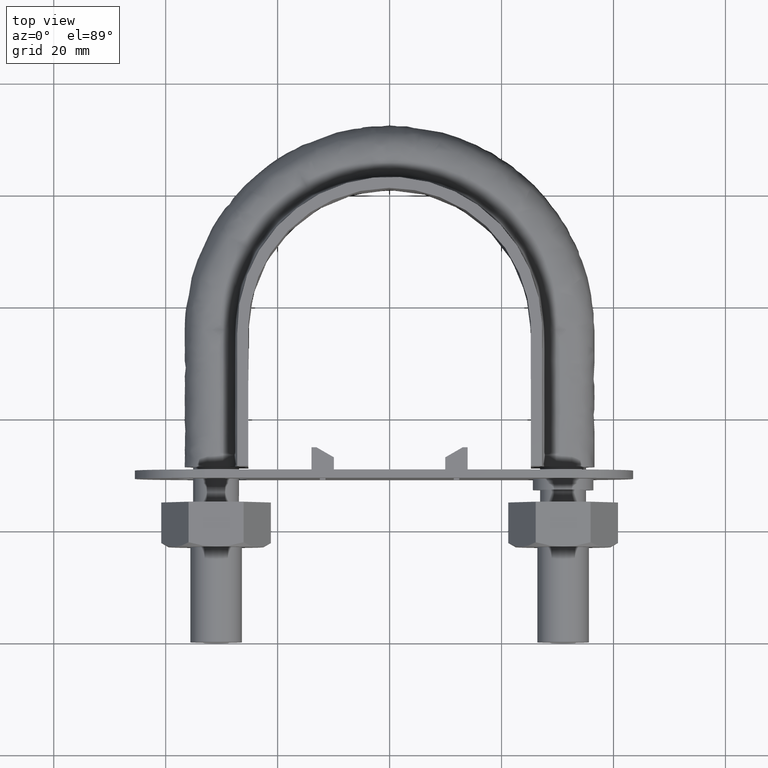
[diagram: clean part render]
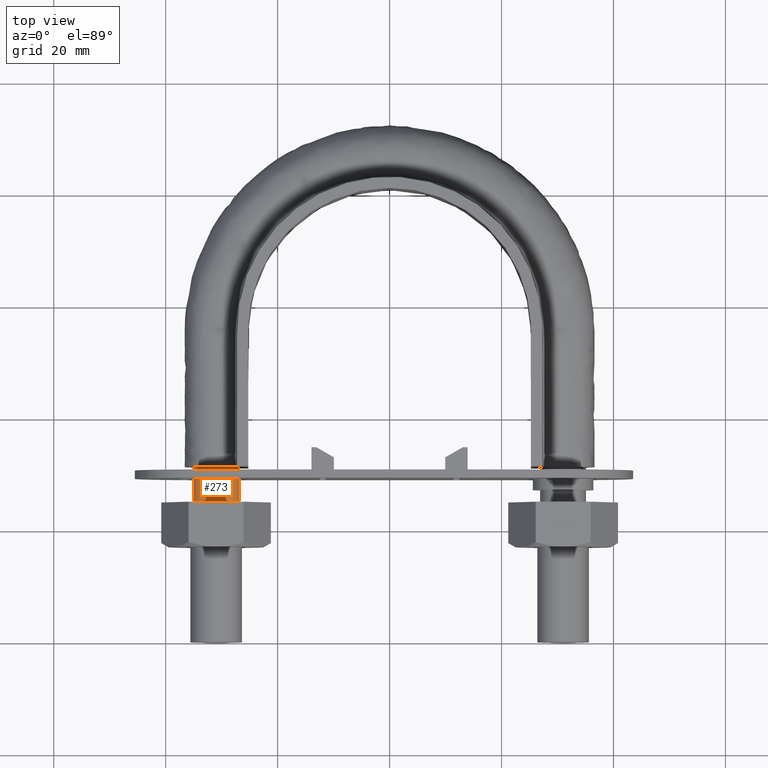
[diagram: same view with one face highlighted and labeled with its STEP entity id]
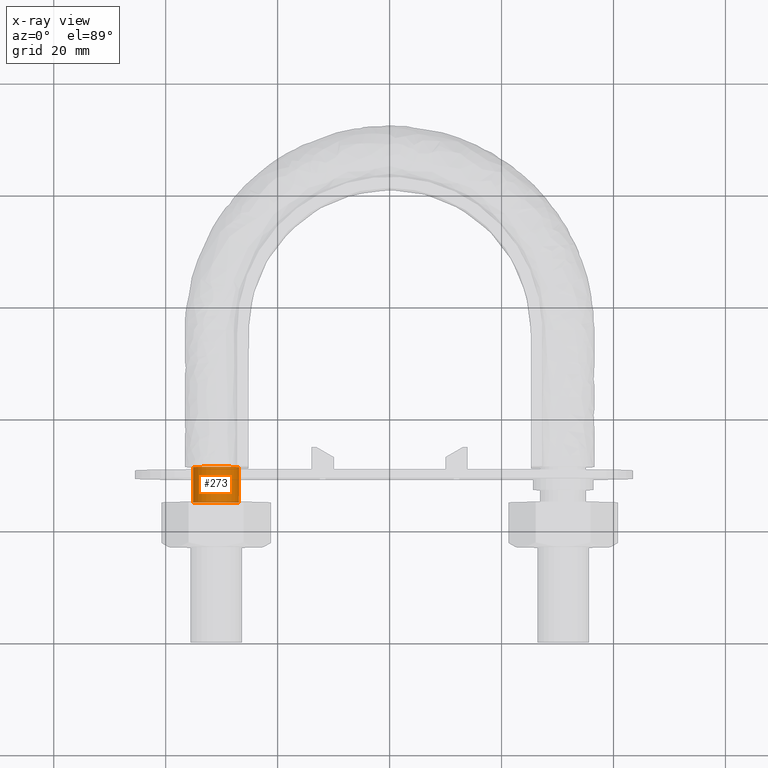
[diagram: x-ray of the same camera — body ghosted, the highlighted face saturated]
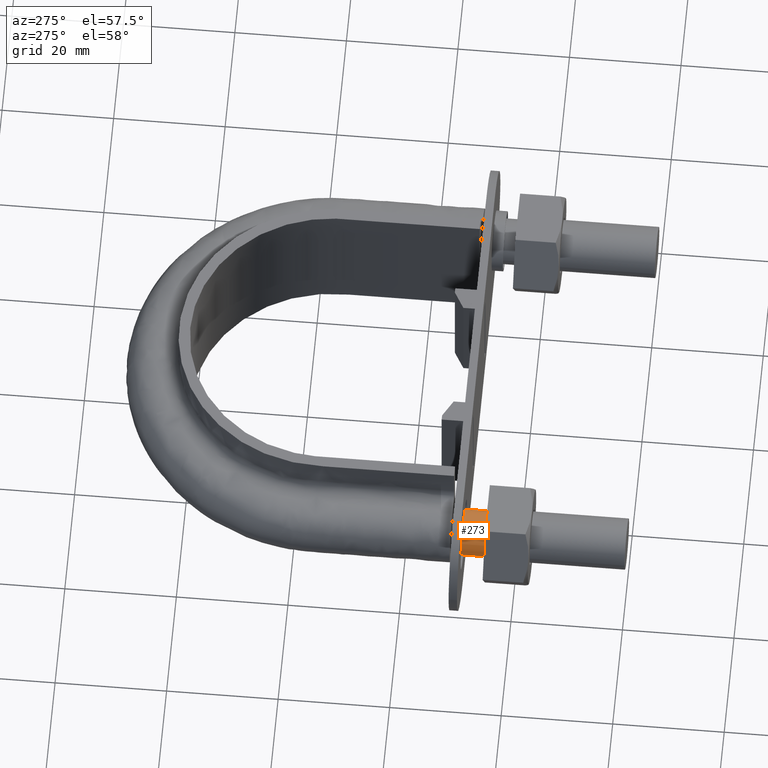
[diagram: same view with one face highlighted and labeled with its STEP entity id]
A machine part, top view. The second image highlights one B-rep face of the part: STEP entity #273.
The next image is the same camera in x-ray: the body ghosted, the highlighted face saturated — about 0% of this face is hidden behind the body in this view.
A second angle (auxiliary view) of the same face is appended — the face is thin or edge-on in the first view.
In plain terms, the highlighted cylindrical surface (bore or boss wall) has radius 4.1 mm, axis along (0, 1, 0).
Its self-contained STEP definition (entity closure, byte-faithful):
#273 = ADVANCED_FACE( '', ( #392, #393 ), #394, .T. );
#392 = FACE_OUTER_BOUND( '', #1171, .T. );
#393 = FACE_OUTER_BOUND( '', #1172, .T. );
#394 = CYLINDRICAL_SURFACE( '', #1173, 4.10000000000000 );
#1171 = EDGE_LOOP( '', ( #1614, #1615, #1616, #1617, #1618, #1619, #1620 ) );
#1172 = EDGE_LOOP( '', ( #1621 ) );
#1173 = AXIS2_PLACEMENT_3D( '', #1622, #1623, #1624 );
#1614 = ORIENTED_EDGE( '', *, *, #2393, .T. );
#1615 = ORIENTED_EDGE( '', *, *, #2394, .T. );
#1616 = ORIENTED_EDGE( '', *, *, #2395, .T. );
#1617 = ORIENTED_EDGE( '', *, *, #2396, .T. );
#1618 = ORIENTED_EDGE( '', *, *, #2397, .T. );
#1619 = ORIENTED_EDGE( '', *, *, #2398, .T. );
#1620 = ORIENTED_EDGE( '', *, *, #2399, .T. );
#1621 = ORIENTED_EDGE( '', *, *, #2400, .T. );
#1622 = CARTESIAN_POINT( '', ( -31.0000000000000, 31.3000000000000, 5.74952683119606E-015 ) );
#1623 = DIRECTION( '', ( 1.22460635382238E-016, 1.00000000000000, 1.83690953073357E-016 ) );
#1624 = DIRECTION( '', ( -1.00000000000000, 1.22460635382238E-016, 0.000000000000000 ) );
#2393 = EDGE_CURVE( '', #2639, #2640, #2641, .T. );
#2394 = EDGE_CURVE( '', #2640, #2642, #2643, .T. );
#2395 = EDGE_CURVE( '', #2642, #2644, #2645, .T. );
#2396 = EDGE_CURVE( '', #2644, #2646, #2647, .T. );
#2397 = EDGE_CURVE( '', #2646, #2648, #2649, .T. );
#2398 = EDGE_CURVE( '', #2648, #2650, #2651, .T. );
#2399 = EDGE_CURVE( '', #2650, #2639, #2652, .T. );
#2400 = EDGE_CURVE( '', #2653, #2653, #2654, .F. );
#2639 = VERTEX_POINT( '', #3216 );
#2640 = VERTEX_POINT( '', #3217 );
#2641 = CIRCLE( '', #3218, 4.10000000000000 );
#2642 = VERTEX_POINT( '', #3219 );
#2643 = CIRCLE( '', #3220, 4.10000000000000 );
#2644 = VERTEX_POINT( '', #3221 );
#2645 = CIRCLE( '', #3222, 4.10000000000000 );
#2646 = VERTEX_POINT( '', #3223 );
#2647 = CIRCLE( '', #3224, 4.10000000000000 );
#2648 = VERTEX_POINT( '', #3225 );
#2649 = CIRCLE( '', #3226, 4.10000000000000 );
#2650 = VERTEX_POINT( '', #3227 );
#2651 = CIRCLE( '', #3228, 4.10000000000000 );
#2652 = CIRCLE( '', #3229, 4.10000000000000 );
#2653 = VERTEX_POINT( '', #3230 );
#2654 = CIRCLE( '', #3231, 4.10000000000000 );
#3216 = CARTESIAN_POINT( '', ( -34.6939723583996, 31.3000000000000, -1.77892333038264 ) );
#3217 = CARTESIAN_POINT( '', ( -31.9123358292208, 31.3000000000000, -3.99720443994549 ) );
#3218 = AXIS2_PLACEMENT_3D( '', #3915, #3916, #3917 );
#3219 = CARTESIAN_POINT( '', ( -28.4436918123791, 31.3000000000000, -3.20550907811888 ) );
#3220 = AXIS2_PLACEMENT_3D( '', #3918, #3919, #3920 );
#3221 = CARTESIAN_POINT( '', ( -26.9000000000000, 31.3000000000000, 5.50935031674880E-014 ) );
#3222 = AXIS2_PLACEMENT_3D( '', #3921, #3922, #3923 );
#3223 = CARTESIAN_POINT( '', ( -28.4436918123814, 31.3000000000000, 3.20550907812072 ) );
#3224 = AXIS2_PLACEMENT_3D( '', #3924, #3925, #3926 );
#3225 = CARTESIAN_POINT( '', ( -31.9123358292212, 31.3000000000000, 3.99720443994542 ) );
#3226 = AXIS2_PLACEMENT_3D( '', #3927, #3928, #3929 );
#3227 = CARTESIAN_POINT( '', ( -34.6939723583998, 31.3000000000000, 1.77892333038228 ) );
#3228 = AXIS2_PLACEMENT_3D( '', #3930, #3931, #3932 );
#3229 = AXIS2_PLACEMENT_3D( '', #3933, #3934, #3935 );
#3230 = CARTESIAN_POINT( '', ( -31.0000000000000, 25.0000000000000, 4.10000000000000 ) );
#3231 = AXIS2_PLACEMENT_3D( '', #3936, #3937, #3938 );
#3915 = CARTESIAN_POINT( '', ( -31.0000000000000, 31.3000000000000, 5.74952683119606E-015 ) );
#3916 = DIRECTION( '', ( -1.22460635382238E-016, -1.00000000000000, -1.83690953073357E-016 ) );
#3917 = DIRECTION( '', ( -1.00000000000000, 1.22460635382238E-016, 0.000000000000000 ) );
#3918 = CARTESIAN_POINT( '', ( -31.0000000000000, 31.3000000000000, 5.74952683119606E-015 ) );
#3919 = DIRECTION( '', ( -1.22460635382238E-016, -1.00000000000000, -1.83690953073357E-016 ) );
#3920 = DIRECTION( '', ( -1.00000000000000, 1.22460635382238E-016, 0.000000000000000 ) );
#3921 = CARTESIAN_POINT( '', ( -31.0000000000000, 31.3000000000000, 5.74952683119606E-015 ) );
#3922 = DIRECTION( '', ( -1.22460635382238E-016, -1.00000000000000, -1.83690953073357E-016 ) );
#3923 = DIRECTION( '', ( -1.00000000000000, 1.22460635382238E-016, 0.000000000000000 ) );
#3924 = CARTESIAN_POINT( '', ( -31.0000000000000, 31.3000000000000, 5.74952683119606E-015 ) );
#3925 = DIRECTION( '', ( -1.22460635382238E-016, -1.00000000000000, -1.83690953073357E-016 ) );
#3926 = DIRECTION( '', ( -1.00000000000000, 1.22460635382238E-016, 0.000000000000000 ) );
#3927 = CARTESIAN_POINT( '', ( -31.0000000000000, 31.3000000000000, 5.74952683119606E-015 ) );
#3928 = DIRECTION( '', ( -1.22460635382238E-016, -1.00000000000000, -1.83690953073357E-016 ) );
#3929 = DIRECTION( '', ( -1.00000000000000, 1.22460635382238E-016, 0.000000000000000 ) );
#3930 = CARTESIAN_POINT( '', ( -31.0000000000000, 31.3000000000000, 5.74952683119606E-015 ) );
#3931 = DIRECTION( '', ( -1.22460635382238E-016, -1.00000000000000, -1.83690953073357E-016 ) );
#3932 = DIRECTION( '', ( -1.00000000000000, 1.22460635382238E-016, 0.000000000000000 ) );
#3933 = CARTESIAN_POINT( '', ( -31.0000000000000, 31.3000000000000, 5.74952683119606E-015 ) );
#3934 = DIRECTION( '', ( -1.22460635382238E-016, -1.00000000000000, -1.83690953073357E-016 ) );
#3935 = DIRECTION( '', ( -1.00000000000000, 1.22460635382238E-016, 0.000000000000000 ) );
#3936 = CARTESIAN_POINT( '', ( -31.0000000000000, 25.0000000000000, 4.59227382683392E-015 ) );
#3937 = DIRECTION( '', ( -1.22460635382238E-016, -1.00000000000000, -1.83690953073357E-016 ) );
#3938 = DIRECTION( '', ( -2.24949108273321E-032, -1.83690953073357E-016, 1.00000000000000 ) );